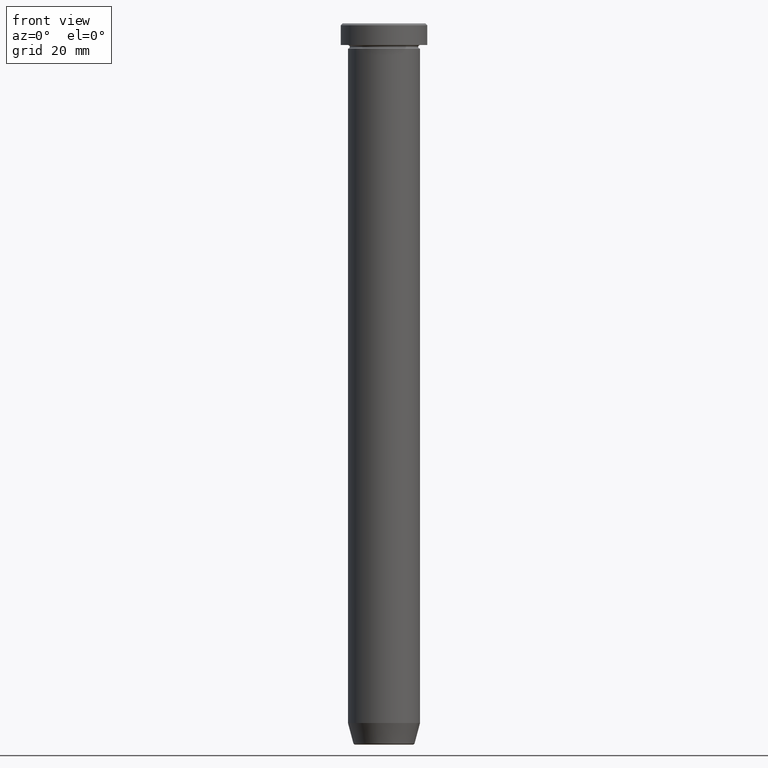
[diagram: clean part render]
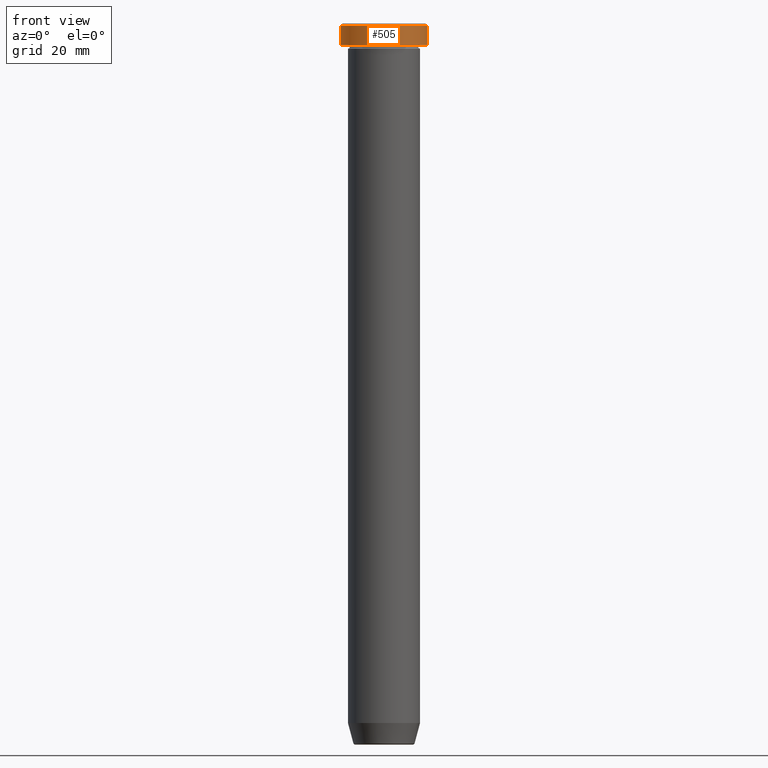
[diagram: same view with one face highlighted and labeled with its STEP entity id]
A machine part, front view. The second image highlights one B-rep face of the part: STEP entity #505.
In plain terms, the highlighted cylindrical surface (partial cylindrical patch) has radius 12 mm, axis along (-0, -0, 1).
Its self-contained STEP definition (entity closure, byte-faithful):
#52 = CYLINDRICAL_SURFACE ( 'NONE', #410, 12.00000000000000000 ) ;
#60 = DIRECTION ( 'NONE',  ( -0.000000000000000000, -0.000000000000000000, 1.000000000000000000 ) ) ;
#63 = ORIENTED_EDGE ( 'NONE', *, *, #445, .T. ) ;
#64 = VERTEX_POINT ( 'NONE', #125 ) ;
#86 = DIRECTION ( 'NONE',  ( -0.000000000000000000, -0.000000000000000000, 1.000000000000000000 ) ) ;
#103 = VERTEX_POINT ( 'NONE', #225 ) ;
#115 = ORIENTED_EDGE ( 'NONE', *, *, #319, .F. ) ;
#125 = CARTESIAN_POINT ( 'NONE',  ( 12.00000000000000000, 0.000000000000000000, -0.4999999999999987232 ) ) ;
#130 = EDGE_LOOP ( 'NONE', ( #115, #63, #261, #590 ) ) ;
#144 = FACE_OUTER_BOUND ( 'NONE', #130, .T. ) ;
#188 = CIRCLE ( 'NONE', #416, 12.00000000000000000 ) ;
#193 = VERTEX_POINT ( 'NONE', #363 ) ;
#204 = EDGE_CURVE ( 'NONE', #103, #64, #235, .T. ) ;
#225 = CARTESIAN_POINT ( 'NONE',  ( 12.00000000000000000, 0.000000000000000000, -5.999999999999999112 ) ) ;
#232 = AXIS2_PLACEMENT_3D ( 'NONE', #500, #309, #266 ) ;
#235 = LINE ( 'NONE', #277, #489 ) ;
#261 = ORIENTED_EDGE ( 'NONE', *, *, #204, .T. ) ;
#266 = DIRECTION ( 'NONE',  ( 1.000000000000000000, 0.000000000000000000, 0.000000000000000000 ) ) ;
#277 = CARTESIAN_POINT ( 'NONE',  ( 12.00000000000000000, 0.000000000000000000, 0.000000000000000000 ) ) ;
#309 = DIRECTION ( 'NONE',  ( 0.000000000000000000, 0.000000000000000000, -1.000000000000000000 ) ) ;
#315 = EDGE_CURVE ( 'NONE', #64, #595, #355, .T. ) ;
#319 = EDGE_CURVE ( 'NONE', #193, #595, #466, .T. ) ;
#326 = VECTOR ( 'NONE', #86, 1000.000000000000000 ) ;
#330 = CARTESIAN_POINT ( 'NONE',  ( -12.00000000000000000, 1.469576158976823947E-15, -0.4999999999999987232 ) ) ;
#355 = CIRCLE ( 'NONE', #232, 12.00000000000000000 ) ;
#360 = DIRECTION ( 'NONE',  ( 1.000000000000000000, 0.000000000000000000, 0.000000000000000000 ) ) ;
#363 = CARTESIAN_POINT ( 'NONE',  ( -12.00000000000000000, 1.469576158976823947E-15, -5.999999999999999112 ) ) ;
#378 = CARTESIAN_POINT ( 'NONE',  ( 0.000000000000000000, 0.000000000000000000, 0.000000000000000000 ) ) ;
#379 = DIRECTION ( 'NONE',  ( 1.000000000000000000, 0.000000000000000000, 0.000000000000000000 ) ) ;
#409 = DIRECTION ( 'NONE',  ( -0.000000000000000000, -0.000000000000000000, 1.000000000000000000 ) ) ;
#410 = AXIS2_PLACEMENT_3D ( 'NONE', #378, #60, #379 ) ;
#416 = AXIS2_PLACEMENT_3D ( 'NONE', #512, #409, #360 ) ;
#445 = EDGE_CURVE ( 'NONE', #193, #103, #188, .T. ) ;
#459 = CARTESIAN_POINT ( 'NONE',  ( -12.00000000000000000, 1.469576158976823947E-15, 0.000000000000000000 ) ) ;
#466 = LINE ( 'NONE', #459, #326 ) ;
#489 = VECTOR ( 'NONE', #561, 1000.000000000000000 ) ;
#500 = CARTESIAN_POINT ( 'NONE',  ( 0.000000000000000000, 0.000000000000000000, -0.4999999999999987232 ) ) ;
#505 = ADVANCED_FACE ( 'NONE', ( #144 ), #52, .T. ) ;
#512 = CARTESIAN_POINT ( 'NONE',  ( 0.000000000000000000, 0.000000000000000000, -5.999999999999999112 ) ) ;
#561 = DIRECTION ( 'NONE',  ( -0.000000000000000000, -0.000000000000000000, 1.000000000000000000 ) ) ;
#590 = ORIENTED_EDGE ( 'NONE', *, *, #315, .T. ) ;
#595 = VERTEX_POINT ( 'NONE', #330 ) ;